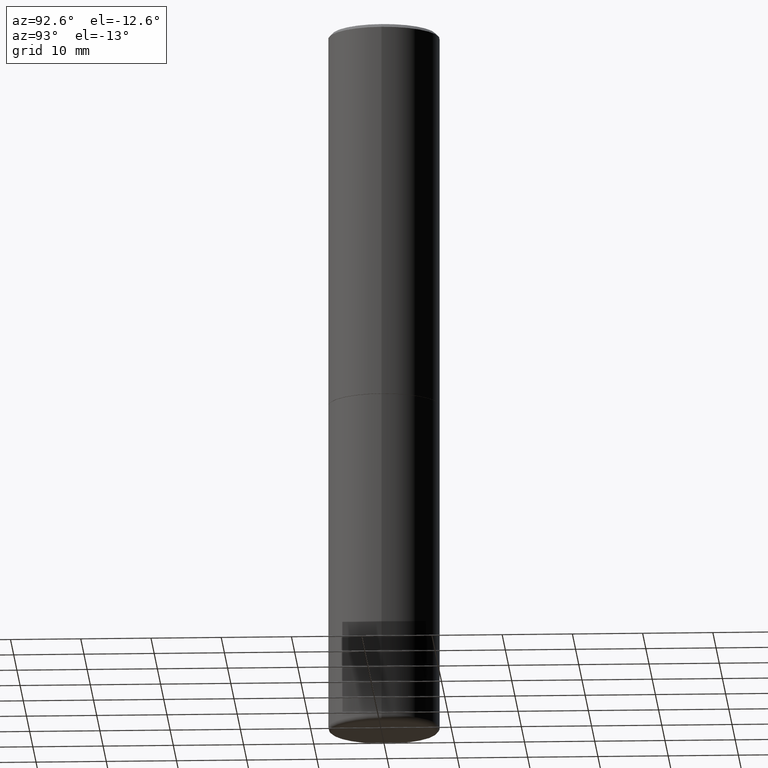
[diagram: clean part render]
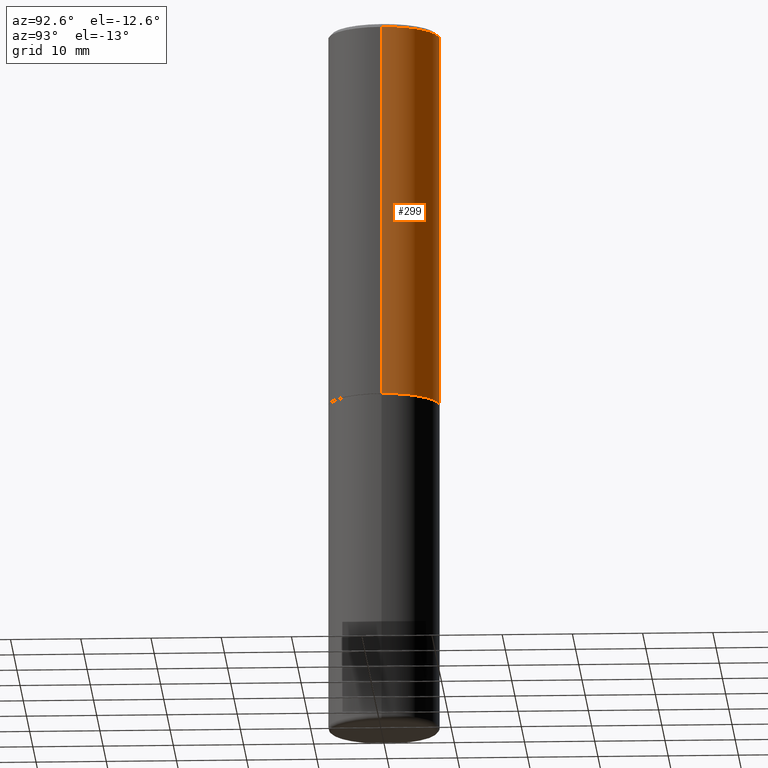
[diagram: same view with one face highlighted and labeled with its STEP entity id]
A machine part, auxiliary view. The second image highlights one B-rep face of the part: STEP entity #299.
In plain terms, the highlighted cylindrical surface (partial cylindrical patch) has radius 7.9375 mm, axis along (-0, 0, 1).
Its self-contained STEP definition (entity closure, byte-faithful):
#7 = CIRCLE ( 'NONE', #172, 0.3125000000000002776 ) ;
#10 = AXIS2_PLACEMENT_3D ( 'NONE', #297, #288, #253 ) ;
#19 = CARTESIAN_POINT ( 'NONE',  ( -0.3125000000000001665, 2.220446049250314264E-15, -1.537167215704658792E-29 ) ) ;
#35 = ORIENTED_EDGE ( 'NONE', *, *, #357, .F. ) ;
#39 = VERTEX_POINT ( 'NONE', #383 ) ;
#45 = AXIS2_PLACEMENT_3D ( 'NONE', #82, #53, #49 ) ;
#46 = ORIENTED_EDGE ( 'NONE', *, *, #415, .T. ) ;
#49 = DIRECTION ( 'NONE',  ( 1.000000000000000000, -6.982962677686266711E-15, 0.000000000000000000 ) ) ;
#53 = DIRECTION ( 'NONE',  ( -2.445468806185136597E-29, 3.491481338843145583E-15, 1.000000000000000000 ) ) ;
#72 = ORIENTED_EDGE ( 'NONE', *, *, #376, .T. ) ;
#74 = CYLINDRICAL_SURFACE ( 'NONE', #10, 0.3125000000000001665 ) ;
#77 = DIRECTION ( 'NONE',  ( -2.445468806185136877E-29, 3.491481338843145188E-15, 1.000000000000000000 ) ) ;
#82 = CARTESIAN_POINT ( 'NONE',  ( 4.890937612370289799E-31, -6.982962677686315028E-17, -0.02000000000000006981 ) ) ;
#104 = VECTOR ( 'NONE', #77, 39.37007874015748143 ) ;
#108 = VERTEX_POINT ( 'NONE', #241 ) ;
#127 = CARTESIAN_POINT ( 'NONE',  ( -0.3124999999999999445, 2.112346210000094654E-15, -0.02000000000000006981 ) ) ;
#132 = VERTEX_POINT ( 'NONE', #127 ) ;
#152 = DIRECTION ( 'NONE',  ( -2.445468806185136597E-29, 3.491481338843145583E-15, 1.000000000000000000 ) ) ;
#166 = FACE_OUTER_BOUND ( 'NONE', #394, .T. ) ;
#172 = AXIS2_PLACEMENT_3D ( 'NONE', #332, #152, #267 ) ;
#189 = VECTOR ( 'NONE', #263, 39.37007874015748143 ) ;
#216 = EDGE_CURVE ( 'NONE', #39, #108, #255, .T. ) ;
#241 = CARTESIAN_POINT ( 'NONE',  ( 0.3124999999999999445, -2.213735251080466517E-15, -0.02000000000000006981 ) ) ;
#253 = DIRECTION ( 'NONE',  ( 1.000000000000000000, -6.982962677686266711E-15, 4.876176775795935232E-29 ) ) ;
#255 = LINE ( 'NONE', #355, #189 ) ;
#263 = DIRECTION ( 'NONE',  ( -2.445468806185136877E-29, 3.491481338843145188E-15, 1.000000000000000000 ) ) ;
#267 = DIRECTION ( 'NONE',  ( 1.000000000000000000, -6.982962677686269077E-15, 0.000000000000000000 ) ) ;
#288 = DIRECTION ( 'NONE',  ( -2.445468806185136597E-29, 3.491481338843145583E-15, 1.000000000000000000 ) ) ;
#297 = CARTESIAN_POINT ( 'NONE',  ( 0.000000000000000000, 0.000000000000000000, 0.000000000000000000 ) ) ;
#299 = ADVANCED_FACE ( 'NONE', ( #166 ), #74, .T. ) ;
#304 = CIRCLE ( 'NONE', #45, 0.3124999999999999445 ) ;
#332 = CARTESIAN_POINT ( 'NONE',  ( 5.194175744337229665E-29, -7.415906363702840616E-15, -2.123999999999999666 ) ) ;
#337 = CARTESIAN_POINT ( 'NONE',  ( -0.3125000000000002776, -1.522421945989534932E-15, -2.123999999999999666 ) ) ;
#355 = CARTESIAN_POINT ( 'NONE',  ( 0.3125000000000001665, -2.182175836776959530E-15, 1.523805242436230636E-29 ) ) ;
#357 = EDGE_CURVE ( 'NONE', #108, #132, #304, .T. ) ;
#363 = LINE ( 'NONE', #19, #104 ) ;
#376 = EDGE_CURVE ( 'NONE', #39, #380, #7, .T. ) ;
#380 = VERTEX_POINT ( 'NONE', #337 ) ;
#383 = CARTESIAN_POINT ( 'NONE',  ( 0.3125000000000002776, -9.598082200479802119E-15, -2.123999999999999666 ) ) ;
#394 = EDGE_LOOP ( 'NONE', ( #72, #46, #35, #416 ) ) ;
#415 = EDGE_CURVE ( 'NONE', #380, #132, #363, .T. ) ;
#416 = ORIENTED_EDGE ( 'NONE', *, *, #216, .F. ) ;